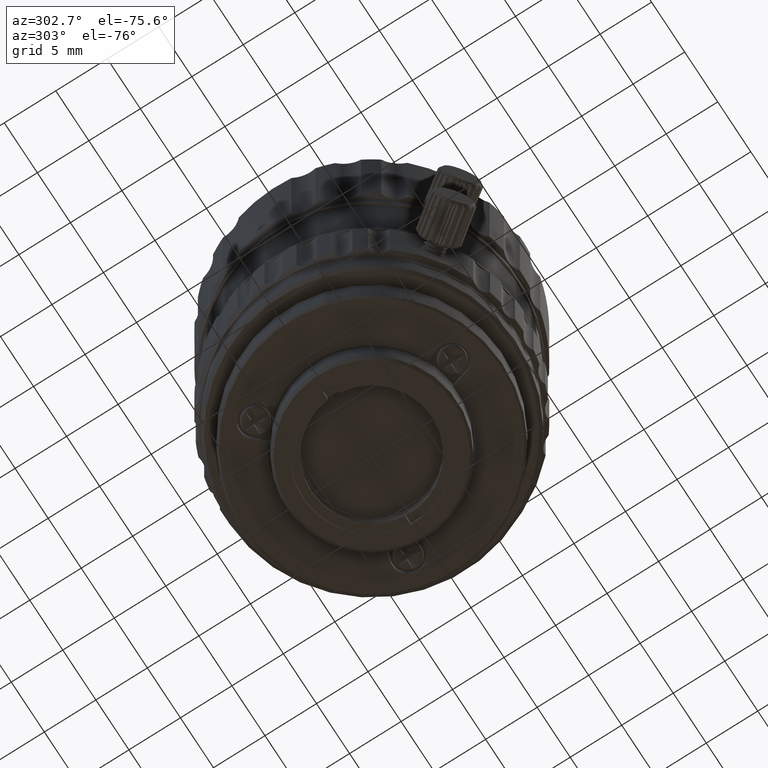
[diagram: clean part render]
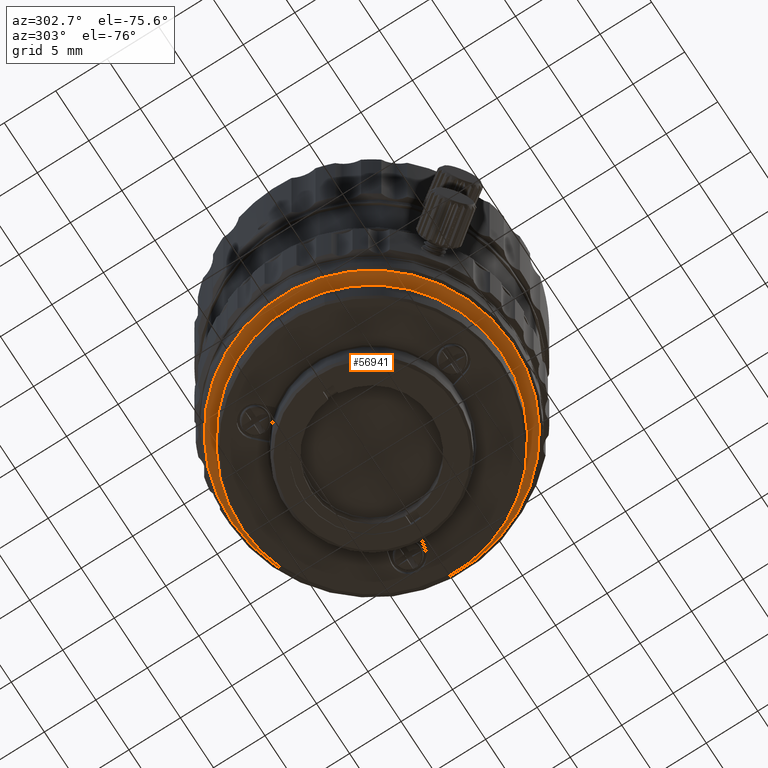
[diagram: same view with one face highlighted and labeled with its STEP entity id]
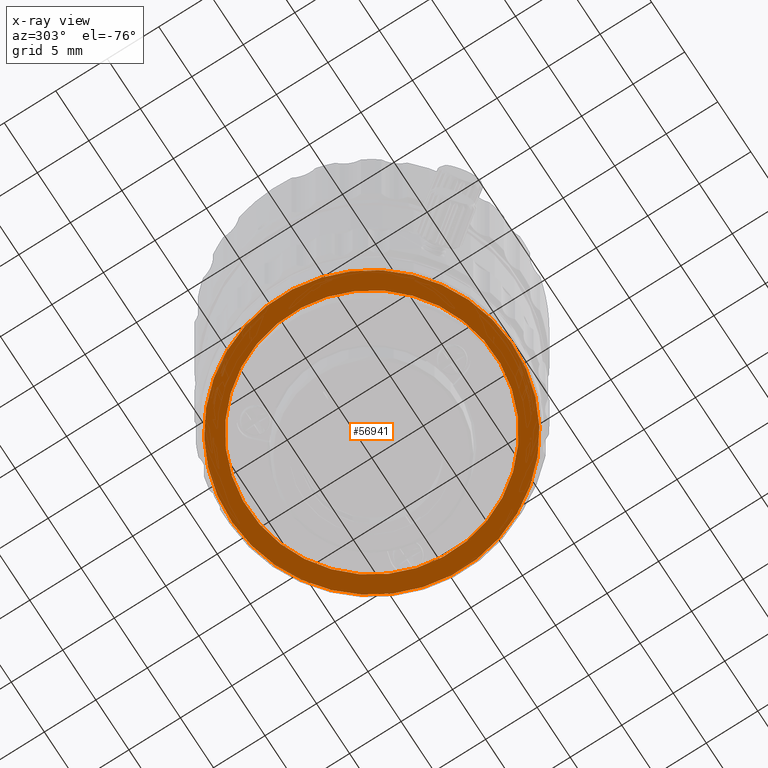
[diagram: x-ray of the same camera — body ghosted, the highlighted face saturated]
A machine part, auxiliary view. The second image highlights one B-rep face of the part: STEP entity #56941.
The next image is the same camera in x-ray: the body ghosted, the highlighted face saturated — about 0% of this face is hidden behind the body in this view.
In plain terms, the highlighted planar face has unit normal (0, 0, 1).
Its self-contained STEP definition (entity closure, byte-faithful):
#848 = DIRECTION ( 'NONE',  ( 0.000000000000000000, 0.000000000000000000, -1.000000000000000000 ) ) ;
#2078 = PLANE ( 'NONE',  #11197 ) ;
#3867 = AXIS2_PLACEMENT_3D ( 'NONE', #30485, #45921, #15964 ) ;
#5677 = AXIS2_PLACEMENT_3D ( 'NONE', #57986, #42510, #38649 ) ;
#5690 = CARTESIAN_POINT ( 'NONE',  ( 7.749086248914999861E-13, 7.749086248914999861E-13, -6.219999937328579698 ) ) ;
#6612 = EDGE_CURVE ( 'NONE', #50592, #35758, #26329, .T. ) ;
#8474 = CARTESIAN_POINT ( 'NONE',  ( -11.59111694743712739, -3.105830425439553899, -6.219999937328579698 ) ) ;
#11197 = AXIS2_PLACEMENT_3D ( 'NONE', #61971, #37470, #22029 ) ;
#11869 = CIRCLE ( 'NONE', #5677, 13.70000726465000440 ) ;
#13203 = ORIENTED_EDGE ( 'NONE', *, *, #47011, .F. ) ;
#13833 = CARTESIAN_POINT ( 'NONE',  ( -13.23319083753772318, -3.545822798204190107, -6.219999937329470541 ) ) ;
#14439 = ORIENTED_EDGE ( 'NONE', *, *, #6612, .F. ) ;
#15964 = DIRECTION ( 'NONE',  ( 0.9659258262890757507, 0.2588190451024929839, 0.000000000000000000 ) ) ;
#16261 = CIRCLE ( 'NONE', #3867, 12.00000728003000283 ) ;
#16804 = ORIENTED_EDGE ( 'NONE', *, *, #23738, .F. ) ;
#17834 = FACE_BOUND ( 'NONE', #55184, .T. ) ;
#20166 = AXIS2_PLACEMENT_3D ( 'NONE', #30544, #40504, #50176 ) ;
#20511 = DIRECTION ( 'NONE',  ( 0.9659258262890757507, 0.2588190451024929839, 0.000000000000000000 ) ) ;
#22029 = DIRECTION ( 'NONE',  ( 1.000000000000000000, 0.000000000000000000, 0.000000000000000000 ) ) ;
#23738 = EDGE_CURVE ( 'NONE', #62739, #52945, #48824, .T. ) ;
#24129 = AXIS2_PLACEMENT_3D ( 'NONE', #5690, #848, #20511 ) ;
#25970 = CARTESIAN_POINT ( 'NONE',  ( 11.59111694743867815, 3.105830425441102438, -6.219999937328579698 ) ) ;
#26329 = CIRCLE ( 'NONE', #20166, 13.70000726465000440 ) ;
#30485 = CARTESIAN_POINT ( 'NONE',  ( 7.749086248914999861E-13, 7.749086248914999861E-13, -6.219999937328579698 ) ) ;
#30544 = CARTESIAN_POINT ( 'NONE',  ( 7.749086248914999861E-13, 7.749086248914999861E-13, -6.219999937329470541 ) ) ;
#32823 = CARTESIAN_POINT ( 'NONE',  ( 13.23319083753927394, 3.545822798205738646, -6.219999937329470541 ) ) ;
#35758 = VERTEX_POINT ( 'NONE', #13833 ) ;
#36459 = ORIENTED_EDGE ( 'NONE', *, *, #61582, .F. ) ;
#37470 = DIRECTION ( 'NONE',  ( 0.000000000000000000, 0.000000000000000000, 1.000000000000000000 ) ) ;
#38649 = DIRECTION ( 'NONE',  ( 0.9659258262890757507, 0.2588190451024929839, 0.000000000000000000 ) ) ;
#40504 = DIRECTION ( 'NONE',  ( 0.000000000000000000, 0.000000000000000000, 1.000000000000000000 ) ) ;
#41355 = FACE_OUTER_BOUND ( 'NONE', #48525, .T. ) ;
#42510 = DIRECTION ( 'NONE',  ( 0.000000000000000000, 0.000000000000000000, 1.000000000000000000 ) ) ;
#45921 = DIRECTION ( 'NONE',  ( 0.000000000000000000, 0.000000000000000000, -1.000000000000000000 ) ) ;
#47011 = EDGE_CURVE ( 'NONE', #35758, #50592, #11869, .T. ) ;
#48525 = EDGE_LOOP ( 'NONE', ( #13203, #14439 ) ) ;
#48824 = CIRCLE ( 'NONE', #24129, 12.00000728003000283 ) ;
#50176 = DIRECTION ( 'NONE',  ( 0.9659258262890757507, 0.2588190451024929839, 0.000000000000000000 ) ) ;
#50592 = VERTEX_POINT ( 'NONE', #32823 ) ;
#52945 = VERTEX_POINT ( 'NONE', #8474 ) ;
#55184 = EDGE_LOOP ( 'NONE', ( #36459, #16804 ) ) ;
#56941 = ADVANCED_FACE ( 'NONE', ( #41355, #17834 ), #2078, .F. ) ;
#57986 = CARTESIAN_POINT ( 'NONE',  ( 7.749086248914999861E-13, 7.749086248914999861E-13, -6.219999937329470541 ) ) ;
#61582 = EDGE_CURVE ( 'NONE', #52945, #62739, #16261, .T. ) ;
#61971 = CARTESIAN_POINT ( 'NONE',  ( -3.105830425439559672, 11.59111694743870125, -6.219999937328600126 ) ) ;
#62739 = VERTEX_POINT ( 'NONE', #25970 ) ;